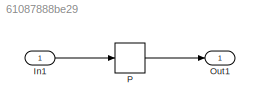
MODEL slx_61087888be29
KIND model
CONFIG AbsTol = auto
CONFIG EnableMultiTasking = off
CONFIG FixedStep = auto
CONFIG MaxStep = auto
CONFIG MinStep = auto
CONFIG RelTol = 1e-3
CONFIG SampleTimeConstraint = Unconstrained
CONFIG Solver = FixedStepDiscrete
CONFIG SolverName = FixedStepDiscrete
CONFIG StartTime = 0.0
CONFIG StopTime = 10.0
BLOCK [Inport] In1
  IconDisplay = Port number
  OutDataTypeStr = single
  PortDimensions = 6
BLOCK [Outport] Out1
  IconDisplay = Port number
BLOCK [Lookup_n-D] P
  BreakpointsForDimension1 = [86.2407624369941;97.3753059246314]
  BreakpointsForDimension1DataTypeStr = int16
  BreakpointsForDimension2 = [16.0840086074607;26.0406397828874;41.9019068352061;50.7278067834767;73.048435265416]
  BreakpointsForDimension2DataTypeStr = int16
  BreakpointsForDimension3 = [22.8213851194546;34.3197507544246;61.2013010693072]
  BreakpointsForDimension3DataTypeStr = int16
  BreakpointsForDimension4 = [3.6502183653066;62.3086040114304]
  BreakpointsForDimension4DataTypeStr = int16
  BreakpointsForDimension5 = [49.6940323335561;56.633152939109;63.5611027395407]
  BreakpointsForDimension5DataTypeStr = int16
  BreakpointsForDimension6 = [21.5152604050114;29.1505374665692;34.0086063164641;103.679159019579]
  BreakpointsForDimension6DataTypeStr = int16
  ExtrapMethod = Clip
  FractionDataTypeStr = single
  InternalRulePriority = Speed
  NumberOfTableDimensions = 6
  OutDataTypeStr = uint8
  Ports = [1, 1]
  RndMeth = Ceiling
  SaturateOnIntegerOverflow = on
  Table = reshape(repmat([4 5 6 7 8;16 19 20 21 22;10 18 23 24 25],6,8),[2,5,3,2,3, 4])
  TableDataTypeStr = double
  UseLastTableValue = on
  UseOneInputPortForAllInputData = on
LINE In1:1 -> P:1
LINE P:1 -> Out1:1
